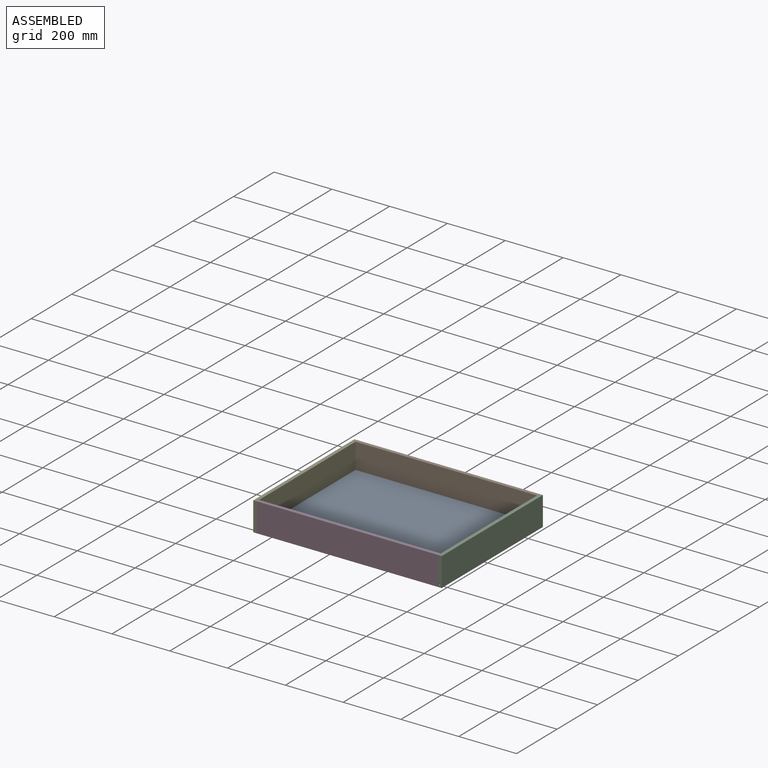
[diagram: assembled view]
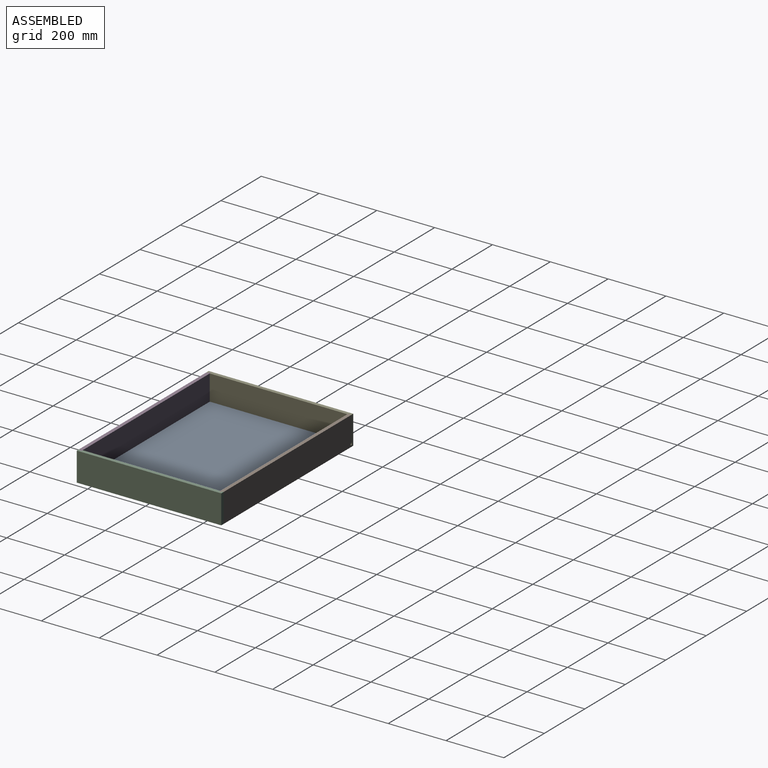
[diagram: assembled view, second angle]
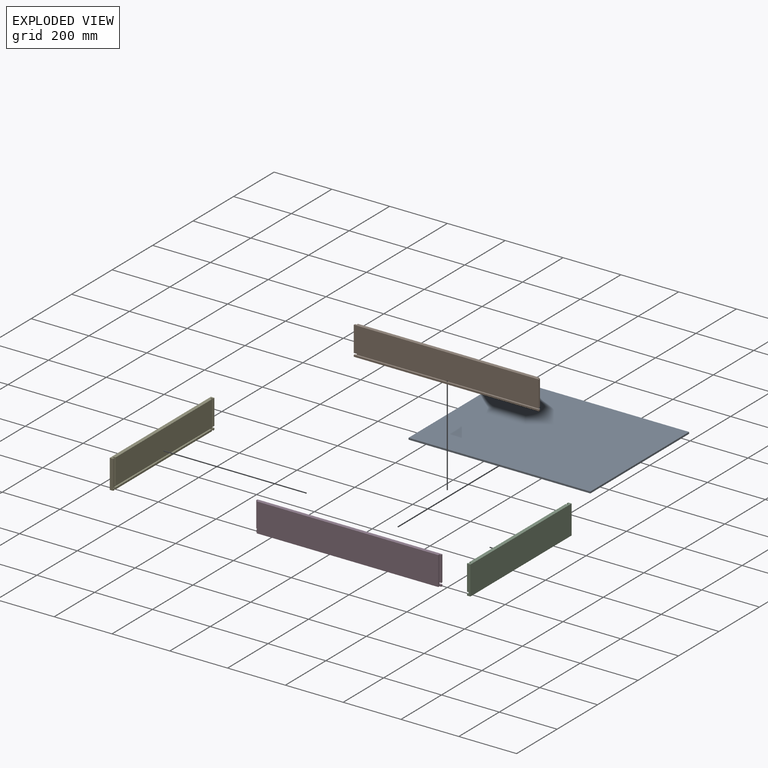
[diagram: exploded view]
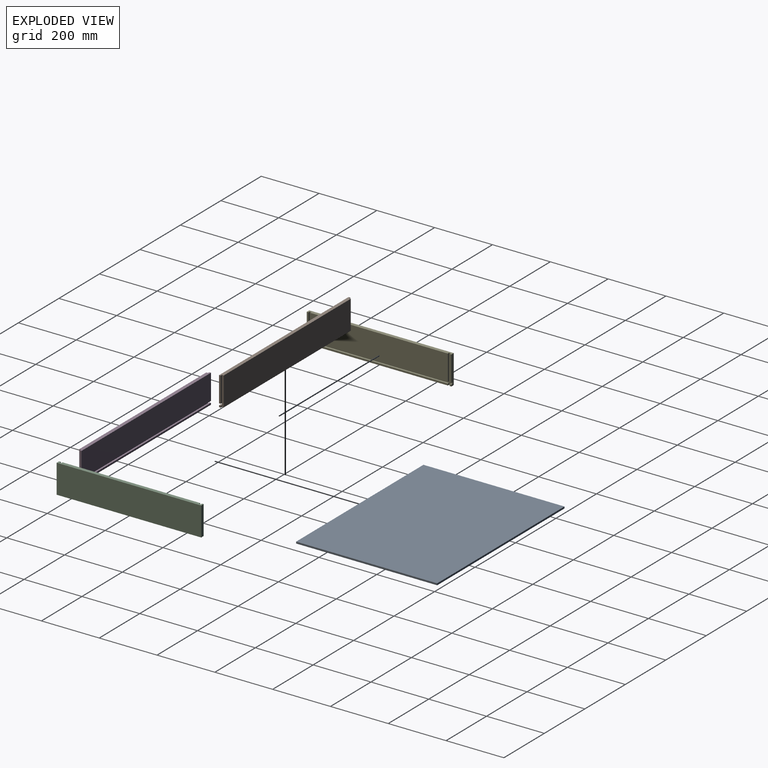
[diagram: exploded view, second angle]
ASSEMBLY  parts=5 mates=4
PART A: 6 faces, bbox 629x488x6 mm
  f0: plane 488x6mm, normal (-1,0,0), area 2928mm2, adj f1,f3,f4,f5
  f1: plane 629x6mm, normal (0,-1,0), area 3774mm2, adj f0,f2,f4,f5
  f2: plane 488x6mm, normal (1,0,0), area 2928mm2, adj f1,f3,f4,f5
  f3: plane 629x6mm, normal (0,1,0), area 3774mm2, adj f0,f2,f4,f5
  f4: plane 629x488mm, normal (0,0,1), area 306952mm2, adj f0,f1,f2,f3
  f5: plane 629x488mm, normal (0,0,-1), area 306952mm2, adj f0,f1,f2,f3
PART B: 18 faces, bbox 640x12x100 mm
  f0: plane 88.03x6mm, normal (1,0,0), area 528.2mm2, adj f2,f3,f5,f17
  f1: plane 88.03x6mm, normal (-1,0,0), area 528.2mm2, adj f2,f4,f5,f17
  f2: plane 640x88.03mm, normal (0,-1,0), area 56336.6mm2, adj f0,f1,f5,f17
  f3: plane 88.03x6mm, normal (0,1,0), area 528.2mm2, adj f0,f5,f11,f17
  f4: plane 88.03x6mm, normal (0,1,0), area 528.2mm2, adj f1,f5,f13,f17
  f5: plane 640x12mm, normal (0,0,1), area 7608mm2, adj f0,f1,f2,f3,f4,f6,f11,f13
  f6: plane 628x100mm, normal (0,1,0), area 62800mm2, adj f5,f7,f11,f13
  f7: plane 640x12mm, normal (0,0,-1), area 7608mm2, adj f6,f8,f9,f10,f11,f12,f13,f14
  f8: plane 6x5.9mm, normal (1,0,0), area 35.4mm2, adj f7,f10,f12,f16
  f9: plane 6x5.9mm, normal (-1,0,0), area 35.4mm2, adj f7,f10,f14,f16
  f10: plane 640x5.9mm, normal (0,-1,0), area 3778mm2, adj f7,f8,f9,f16
  f11: plane 100x6mm, normal (1,0,0), area 600mm2, adj f3,f5,f6,f7,f12,f15
  f12: plane 6x5.9mm, normal (0,1,0), area 35.4mm2, adj f7,f8,f11,f16
  f13: plane 100x6mm, normal (-1,0,0), area 600mm2, adj f4,f5,f6,f7,f14,f15
  f14: plane 6x5.9mm, normal (0,1,0), area 35.4mm2, adj f7,f9,f13,f16
  f15: plane 628x6.07mm, normal (0,-1,0), area 3812.5mm2, adj f11,f13,f16,f17
  f16: plane 640x6mm, normal (0,0,1), area 3840mm2, adj f8,f9,f10,f12,f14,f15
  f17: plane 640x6mm, normal (0,0,-1), area 3840mm2, adj f0,f1,f2,f3,f4,f15
PART C: 26 faces, bbox 12x500x100 mm
  f0: plane 500x12mm, normal (0,0,1), area 5928mm2, adj f1,f4,f5,f7,f8,f9,f14,f15
  f1: plane 100x12mm, normal (0,-1,0), area 1164mm2, adj f0,f3,f4,f6,f8,f19,f20,f25
  f2: plane 476x6mm, normal (-1,0,0), area 2856mm2, adj f6,f22,f23,f24
  f3: plane 6x6mm, normal (-1,0,0), area 36mm2, adj f1,f6,f20,f21
  f4: plane 88x6mm, normal (-1,0,0), area 528mm2, adj f0,f1,f18,f19
  f5: plane 100x6mm, normal (-1,0,0), area 564.4mm2, adj f0,f6,f7,f10,f11,f12,f13,f14
  f6: plane 500x12mm, normal (0,0,-1), area 5928mm2, adj f1,f2,f3,f5,f7,f8,f10,f21
  f7: plane 100x12mm, normal (0,1,0), area 1200mm2, adj f0,f5,f6,f8
  f8: plane 500x100mm, normal (1,0,0), area 50000mm2, adj f0,f1,f6,f7
  f9: plane 476x88mm, normal (-1,0,0), area 41888mm2, adj f0,f15,f16,f17
  f10: plane 6x6mm, normal (0,-1,0), area 36mm2, adj f5,f6,f11,f25
  f11: plane 6x5.93mm, normal (0,0,1), area 35.6mm2, adj f5,f10,f12,f25
  f12: plane 6x6mm, normal (0,-1,0), area 36mm2, adj f5,f11,f13,f25
  f13: plane 6x5.93mm, normal (0,0,-1), area 35.6mm2, adj f5,f12,f14,f25
  f14: plane 88x6mm, normal (0,-1,0), area 528mm2, adj f0,f5,f13,f25
  f15: plane 88x6mm, normal (0,1,0), area 528mm2, adj f0,f9,f16,f25
  f16: plane 476x6mm, normal (0,0,-1), area 2856mm2, adj f9,f15,f17,f25
  f17: plane 88x6mm, normal (0,-1,0), area 528mm2, adj f0,f9,f16,f25
  f18: plane 88x6mm, normal (0,1,0), area 528mm2, adj f0,f4,f19,f25
  f19: plane 6x6mm, normal (0,0,-1), area 36mm2, adj f1,f4,f18,f25
  f20: plane 6x6mm, normal (0,0,1), area 36mm2, adj f1,f3,f21,f25
  f21: plane 6x6mm, normal (0,1,0), area 36mm2, adj f3,f6,f20,f25
  f22: plane 6x6mm, normal (0,-1,0), area 36mm2, adj f2,f6,f23,f25
  f23: plane 476x6mm, normal (0,0,1), area 2856mm2, adj f2,f22,f24,f25
  f24: plane 6x6mm, normal (0,1,0), area 36mm2, adj f2,f6,f23,f25
  f25: plane 499.93x100mm, normal (-1,0,0), area 4127.6mm2, adj f0,f1,f6,f10,f11,f12,f13,f14
PART D: same geometry as B
PART E: same geometry as C
PLACE A t=(164.32,-228.38,266.82)mm
PLACE B t=(158.82,265.62,260.89)mm
PLACE C t=(792.82,-234.38,260.89)mm
PLACE D rot(axis=(0,0,1),180deg) t=(798.82,-234.38,260.89)mm
PLACE E rot(axis=(0,0,1),180deg) t=(164.82,265.62,260.89)mm
MATE fastened E.f25 <-> B.f1  axis (1,0,0) through (158.82,256.62,360.89)mm
MATE fastened A.f1 <-> D.f15  axis (0,-1,0) through (478.82,-228.38,269.82)mm
MATE fastened C.f25 <-> D.f1  axis (-1,0,0) through (798.82,-225.38,360.89)mm
MATE fastened E.f25 <-> D.f0  axis (1,0,0) through (158.82,-225.38,360.89)mm
